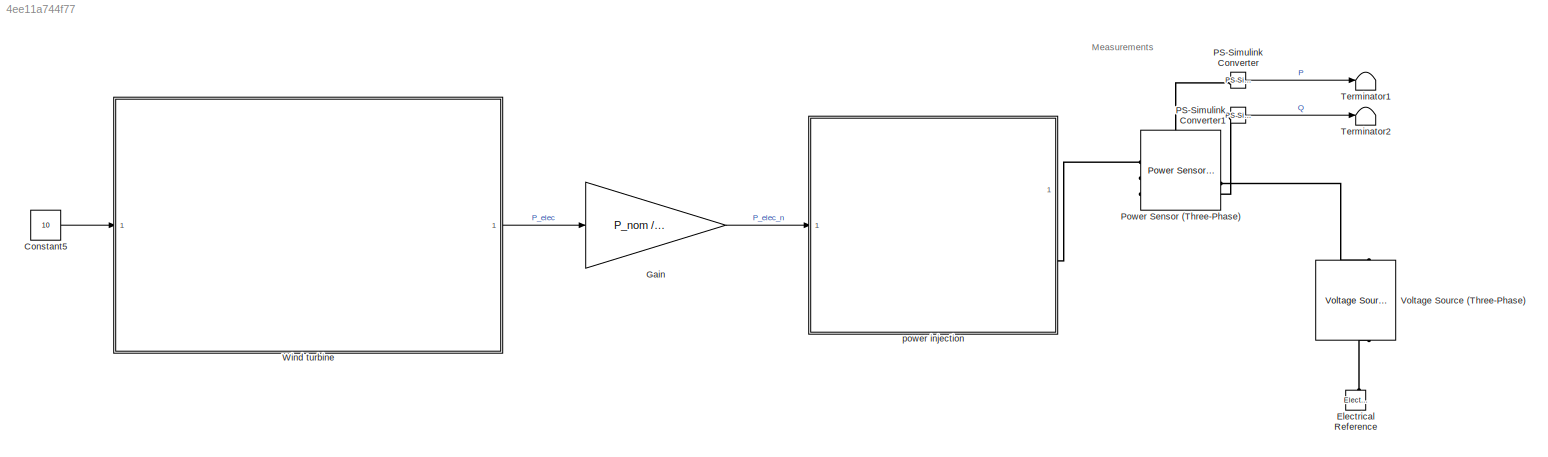
MODEL slx_4ee11a744f77
KIND model
CONFIG AbsTol = auto
CONFIG EnableMultiTasking = off
CONFIG FixedStep = auto
CONFIG MaxStep = 0.002
CONFIG MinStep = auto
CONFIG RelTol = 1e-3
CONFIG SampleTimeConstraint = Unconstrained
CONFIG SolverName = ode23t
CONFIG StartTime = 0
CONFIG StopTime = 20
BLOCK [Constant] Constant5
  Value = 10
BLOCK [Reference] Electrical Reference  REF=fl_lib/Electrical/Electrical Elements/Electrical Reference
  NameLocation = right
  SourceBlock = fl_lib/Electrical/Electrical Elements/Electrical Reference
  SourceType = Electrical Reference
BLOCK [Gain] Gain
  Gain = P_nom / P_max
BLOCK [Reference] PS-Simulink Converter  REF=nesl_utility/PS-Simulink
Converter
  SourceBlock = nesl_utility/PS-Simulink\nConverter
  SourceType = PS-Simulink\nConverter
BLOCK [Reference] PS-Simulink Converter1  REF=nesl_utility/PS-Simulink
Converter
  SourceBlock = nesl_utility/PS-Simulink\nConverter
  SourceType = PS-Simulink\nConverter
BLOCK [Reference] Power Sensor (Three-Phase)  REF=ee_lib/Sensors &
Transducers/Power Sensor
(Three-Phase)
  SourceBlock = ee_lib/Sensors &\nTransducers/Power Sensor\n(Three-Phase)
  SourceType = Power Sensor\n(Three-Phase)
BLOCK [Terminator] Terminator1
BLOCK [Terminator] Terminator2
BLOCK [Reference] Voltage Source (Three-Phase)  REF=ee_lib/Sources/Voltage
Source
(Three-Phase)
  NameLocation = right
  SourceBlock = ee_lib/Sources/Voltage\nSource\n(Three-Phase)
  SourceType = Voltage\nSource\n(Three-Phase)
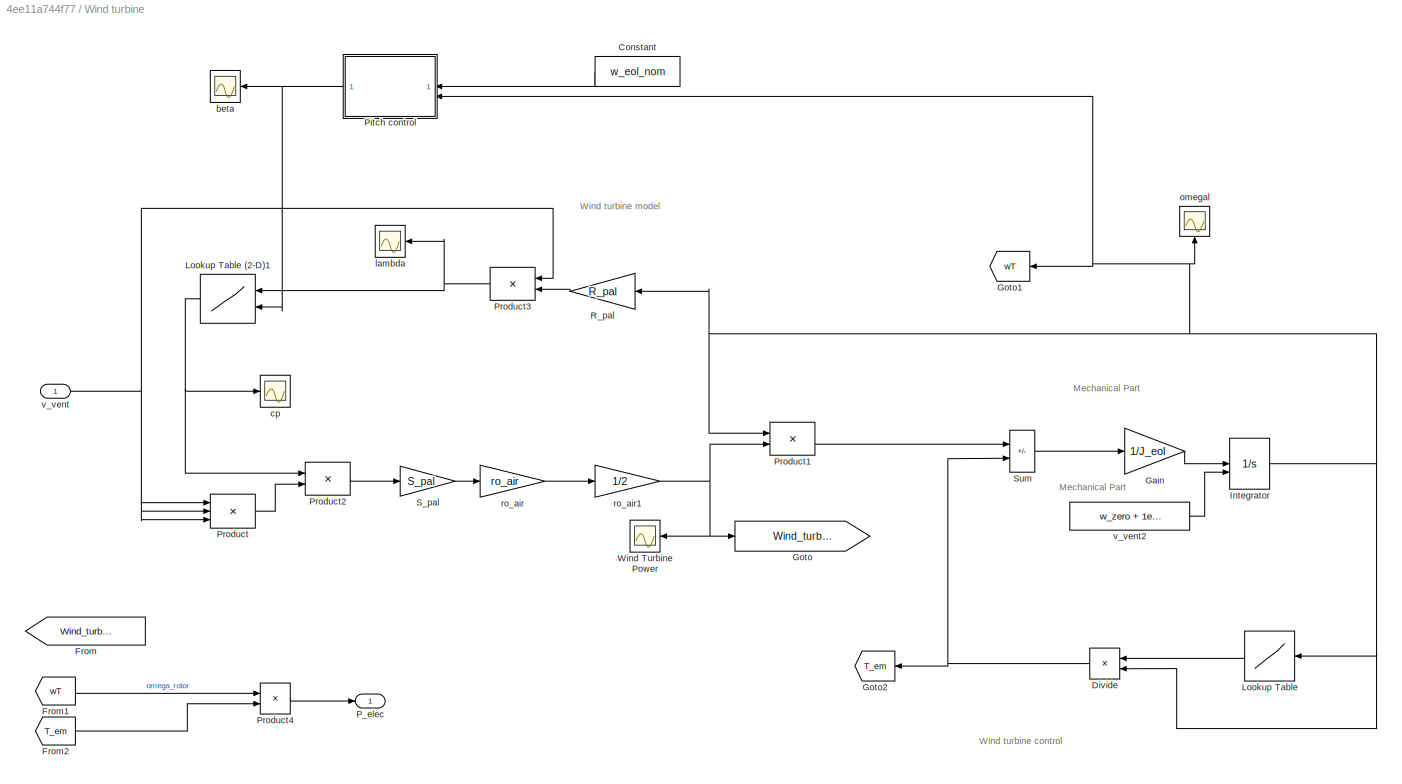
BLOCK [SubSystem] Wind turbine
BLOCK [Constant] Wind turbine/Constant
  Value = w_eol_nom
BLOCK [Product] Wind turbine/Divide
  InputSameDT = on
  Inputs = */
  OutDataTypeStr = Inherit: Same as first input
  RndMeth = Zero
BLOCK [From] Wind turbine/From
  CloseFcn = tagdialog Close
  GotoTag = Wind_turbine_Power
BLOCK [From] Wind turbine/From1
  CloseFcn = tagdialog Close
  GotoTag = wT
BLOCK [From] Wind turbine/From2
  CloseFcn = tagdialog Close
  GotoTag = T_em
BLOCK [Gain] Wind turbine/Gain
  Gain = 1/J_eol
  OutDataTypeStr = Inherit: Same as input
  ParamDataTypeStr = Inherit: Same as input
  SaturateOnIntegerOverflow = on
BLOCK [Goto] Wind turbine/Goto
  GotoTag = Wind_turbine_Power
BLOCK [Goto] Wind turbine/Goto1
  GotoTag = wT
BLOCK [Goto] Wind turbine/Goto2
  GotoTag = T_em
BLOCK [Integrator] Wind turbine/Integrator
  InitialConditionSource = external
BLOCK [Lookup] Wind turbine/Lookup Table
  InputValues = omega_tab
  Table = P_opt_tab2
BLOCK [Lookup2D] Wind turbine/Lookup Table (2-D)1
  ColumnIndex = beta_ref
  RowIndex = lambda_ref
  Table = Cp_ref
BLOCK [Outport] Wind turbine/P_elec
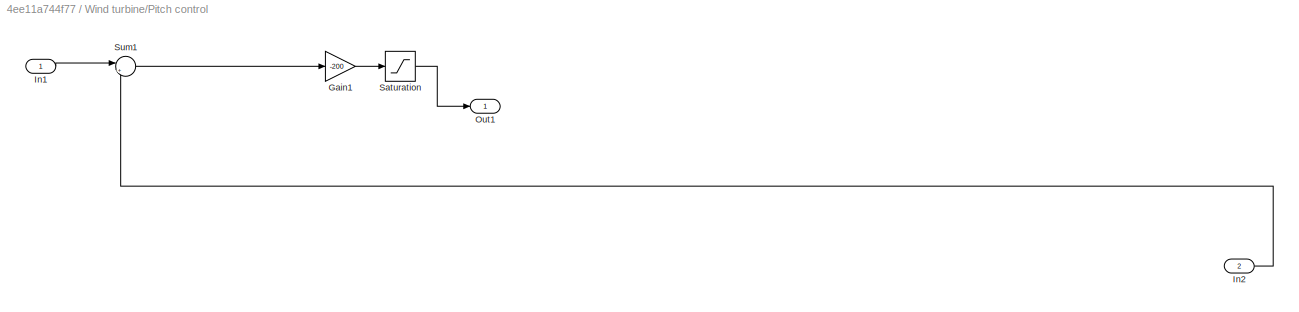
BLOCK [SubSystem] Wind turbine/Pitch control
BLOCK [Gain] Wind turbine/Pitch control/Gain1
  Gain = -200
BLOCK [Inport] Wind turbine/Pitch control/In1
BLOCK [Inport] Wind turbine/Pitch control/In2
  Port = 2
BLOCK [Outport] Wind turbine/Pitch control/Out1
BLOCK [Saturate] Wind turbine/Pitch control/Saturation
  LowerLimit = 0
  UpperLimit = inf
BLOCK [Sum] Wind turbine/Pitch control/Sum1
  Inputs = |+-
BLOCK [Product] Wind turbine/Product
  InputSameDT = on
  Inputs = 3
  OutDataTypeStr = Inherit: Same as first input
  RndMeth = Zero
  SaturateOnIntegerOverflow = on
BLOCK [Product] Wind turbine/Product1
  InputSameDT = on
  Inputs = /*
  OutDataTypeStr = Inherit: Same as first input
  RndMeth = Zero
  SaturateOnIntegerOverflow = on
BLOCK [Product] Wind turbine/Product2
  InputSameDT = on
  OutDataTypeStr = Inherit: Same as first input
  RndMeth = Zero
  SaturateOnIntegerOverflow = on
BLOCK [Product] Wind turbine/Product3
  InputSameDT = on
  Inputs = /*
  OutDataTypeStr = Inherit: Same as first input
  RndMeth = Zero
  SaturateOnIntegerOverflow = on
BLOCK [Product] Wind turbine/Product4
BLOCK [Gain] Wind turbine/R_pal
  Gain = R_pal
  OutDataTypeStr = Inherit: Same as input
  ParamDataTypeStr = Inherit: Same as input
  SaturateOnIntegerOverflow = on
BLOCK [Gain] Wind turbine/S_pal
  Gain = S_pal
  OutDataTypeStr = Inherit: Same as input
  ParamDataTypeStr = Inherit: Same as input
  SaturateOnIntegerOverflow = on
BLOCK [Sum] Wind turbine/Sum
  IconShape = rectangular
  InputSameDT = on
  Inputs = +-
  OutDataTypeStr = Inherit: Same as first input
  SaturateOnIntegerOverflow = on
BLOCK [Scope] Wind turbine/Wind Turbine Power
  Floating = off
  NameLocation = left
  NumInputPorts = 1
  ScopeSpecificationString = Simulink.scopes.TimeScopeBlockCfg('CurrentConfiguration', extmgr.ConfigurationSet(extmgr.Configuration('Core','General UI',true),extmgr.Configuration('Core','Source UI',true),extmgr.Configuration('Sources','WiredSimulink',true,'DataLoggingVariableName','ScopeData3'),extmgr.Configuration('Visuals','Time Domain',true,'SerializedDisplays',{struct('MinYLimReal','8318.13591','MaxYLimReal','263665.12868...<+1396ch>
BLOCK [Scope] Wind turbine/beta
  Floating = off
  NumInputPorts = 1
  ScopeSpecificationString = Simulink.scopes.TimeScopeBlockCfg('CurrentConfiguration', extmgr.ConfigurationSet(extmgr.Configuration('Core','General UI',true),extmgr.Configuration('Core','Source UI',true),extmgr.Configuration('Sources','WiredSimulink',true,'DataLoggingVariableName','ScopeData4'),extmgr.Configuration('Visuals','Time Domain',true,'SerializedDisplays',{struct('MinYLimReal','-1.40555','MaxYLimReal','12.64997','YLa...<+1409ch>
BLOCK [Scope] Wind turbine/cp
  Floating = off
  NumInputPorts = 1
  ScopeSpecificationString = Simulink.scopes.TimeScopeBlockCfg('CurrentConfiguration', extmgr.ConfigurationSet(extmgr.Configuration('Core','General UI',true),extmgr.Configuration('Core','Source UI',true),extmgr.Configuration('Sources','WiredSimulink',true,'DataLoggingVariableName','ScopeData1','DataLoggingSaveFormat','StructureWithTime','DataLoggingDecimation','1','DataLoggingDecimateData',true),extmgr.Configuration('Visuals'...<+1723ch>
BLOCK [Scope] Wind turbine/lambda
  Floating = off
  NumInputPorts = 1
  ScopeSpecificationString = Simulink.scopes.TimeScopeBlockCfg('CurrentConfiguration', extmgr.ConfigurationSet(extmgr.Configuration('Core','General UI',true),extmgr.Configuration('Core','Source UI',true),extmgr.Configuration('Sources','WiredSimulink',true,'DataLoggingVariableName','ScopeData2','DataLoggingSaveFormat','StructureWithTime','DataLoggingDecimation','1','DataLoggingDecimateData',true),extmgr.Configuration('Visuals'...<+1704ch>
BLOCK [Scope] Wind turbine/omegal  
  Floating = off
  NameLocation = left
  NumInputPorts = 1
  ScopeSpecificationString = Simulink.scopes.TimeScopeBlockCfg('CurrentConfiguration', extmgr.ConfigurationSet(extmgr.Configuration('Core','General UI',true),extmgr.Configuration('Core','Source UI',true),extmgr.Configuration('Sources','WiredSimulink',true,'DataLogging',true,'DataLoggingVariableName','omega_pal','DataLoggingSaveFormat','Array','DataLoggingMaxPoints','2000','DataLoggingDecimation','1','DataLoggingDecimateData',...<+1790ch>
BLOCK [Gain] Wind turbine/ro_air
  Gain = ro_air
  OutDataTypeStr = Inherit: Same as input
  ParamDataTypeStr = Inherit: Same as input
  SaturateOnIntegerOverflow = on
BLOCK [Gain] Wind turbine/ro_air1
  Gain = 1/2
  OutDataTypeStr = Inherit: Same as input
  ParamDataTypeStr = Inherit: Same as input
  SaturateOnIntegerOverflow = on
BLOCK [Inport] Wind turbine/v_vent
BLOCK [Constant] Wind turbine/v_vent2
  Value = w_zero + 1e-6
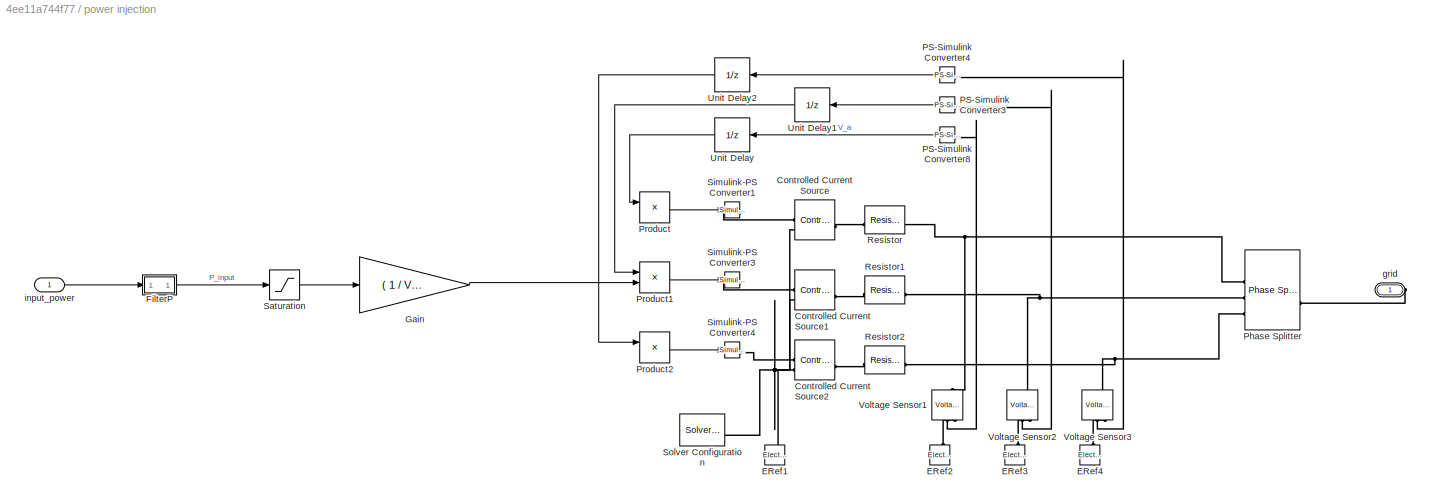
BLOCK [SubSystem] power injection
BLOCK [Reference] power injection/Controlled Current Source  REF=fl_lib/Electrical/Electrical Sources/Controlled Current
Source
  SourceBlock = fl_lib/Electrical/Electrical Sources/Controlled Current\nSource
  SourceType = Controlled Current\nSource
BLOCK [Reference] power injection/Controlled Current Source1  REF=fl_lib/Electrical/Electrical Sources/Controlled Current
Source
  SourceBlock = fl_lib/Electrical/Electrical Sources/Controlled Current\nSource
  SourceType = Controlled Current\nSource
BLOCK [Reference] power injection/Controlled Current Source2  REF=fl_lib/Electrical/Electrical Sources/Controlled Current
Source
  SourceBlock = fl_lib/Electrical/Electrical Sources/Controlled Current\nSource
  SourceType = Controlled Current\nSource
BLOCK [Reference] power injection/ERef1  REF=fl_lib/Electrical/Electrical Elements/Electrical Reference
  NameLocation = right
  SourceBlock = fl_lib/Electrical/Electrical Elements/Electrical Reference
  SourceType = Electrical Reference
BLOCK [Reference] power injection/ERef2  REF=fl_lib/Electrical/Electrical Elements/Electrical Reference
  NameLocation = right
  SourceBlock = fl_lib/Electrical/Electrical Elements/Electrical Reference
  SourceType = Electrical Reference
BLOCK [Reference] power injection/ERef3  REF=fl_lib/Electrical/Electrical Elements/Electrical Reference
  NameLocation = right
  SourceBlock = fl_lib/Electrical/Electrical Elements/Electrical Reference
  SourceType = Electrical Reference
BLOCK [Reference] power injection/ERef4  REF=fl_lib/Electrical/Electrical Elements/Electrical Reference
  NameLocation = right
  SourceBlock = fl_lib/Electrical/Electrical Elements/Electrical Reference
  SourceType = Electrical Reference
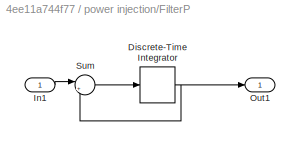
BLOCK [SubSystem] power injection/FilterP
BLOCK [DiscreteIntegrator] power injection/FilterP/Discrete-Time Integrator
  ICPrevOutput = DiscIntNeverNeededParam
  ICPrevScaledInput = DiscIntNeverNeededParam
  InitialConditionSetting = Auto
  SampleTime = -1
  gainval = 20
BLOCK [Inport] power injection/FilterP/In1
BLOCK [Outport] power injection/FilterP/Out1
BLOCK [Sum] power injection/FilterP/Sum
  Inputs = |+-
BLOCK [Gain] power injection/Gain
  Gain = ( 1 / V_ref ) ^ 2
BLOCK [Reference] power injection/PS-Simulink Converter3  REF=nesl_utility/PS-Simulink
Converter
  NameLocation = top
  SourceBlock = nesl_utility/PS-Simulink\nConverter
  SourceType = PS-Simulink\nConverter
BLOCK [Reference] power injection/PS-Simulink Converter4  REF=nesl_utility/PS-Simulink
Converter
  NameLocation = top
  SourceBlock = nesl_utility/PS-Simulink\nConverter
  SourceType = PS-Simulink\nConverter
BLOCK [Reference] power injection/PS-Simulink Converter8  REF=nesl_utility/PS-Simulink
Converter
  NameLocation = top
  SourceBlock = nesl_utility/PS-Simulink\nConverter
  SourceType = PS-Simulink\nConverter
BLOCK [Reference] power injection/Phase Splitter  REF=ee_lib/Connectors &
References/Phase Splitter
  SourceBlock = ee_lib/Connectors &\nReferences/Phase Splitter
  SourceType = Phase Splitter
BLOCK [Product] power injection/Product
BLOCK [Product] power injection/Product1
BLOCK [Product] power injection/Product2
BLOCK [Reference] power injection/Resistor  REF=fl_lib/Electrical/Electrical Elements/Resistor
  SourceBlock = fl_lib/Electrical/Electrical Elements/Resistor
  SourceType = Resistor
BLOCK [Reference] power injection/Resistor1  REF=fl_lib/Electrical/Electrical Elements/Resistor
  SourceBlock = fl_lib/Electrical/Electrical Elements/Resistor
  SourceType = Resistor
BLOCK [Reference] power injection/Resistor2  REF=fl_lib/Electrical/Electrical Elements/Resistor
  SourceBlock = fl_lib/Electrical/Electrical Elements/Resistor
  SourceType = Resistor
BLOCK [Saturate] power injection/Saturation
  LowerLimit = 0
  UpperLimit = P_max
BLOCK [Reference] power injection/Simulink-PS Converter1  REF=nesl_utility/Simulink-PS
Converter
  SourceBlock = nesl_utility/Simulink-PS\nConverter
  SourceType = Simulink-PS\nConverter
BLOCK [Reference] power injection/Simulink-PS Converter3  REF=nesl_utility/Simulink-PS
Converter
  SourceBlock = nesl_utility/Simulink-PS\nConverter
  SourceType = Simulink-PS\nConverter
BLOCK [Reference] power injection/Simulink-PS Converter4  REF=nesl_utility/Simulink-PS
Converter
  SourceBlock = nesl_utility/Simulink-PS\nConverter
  SourceType = Simulink-PS\nConverter
BLOCK [Reference] power injection/Solver Configuration  REF=nesl_utility/Solver
Configuration
  SourceBlock = nesl_utility/Solver\nConfiguration
  SourceType = Solver\nConfiguration
BLOCK [UnitDelay] power injection/Unit Delay
  HasFrameUpgradeWarning = on
  SampleTime = -1
BLOCK [UnitDelay] power injection/Unit Delay1
  HasFrameUpgradeWarning = on
  SampleTime = -1
BLOCK [UnitDelay] power injection/Unit Delay2
  HasFrameUpgradeWarning = on
  SampleTime = -1
BLOCK [Reference] power injection/Voltage Sensor1  REF=fl_lib/Electrical/Electrical Sensors/Voltage Sensor
  NameLocation = right
  SourceBlock = fl_lib/Electrical/Electrical Sensors/Voltage Sensor
  SourceType = Voltage Sensor
BLOCK [Reference] power injection/Voltage Sensor2  REF=fl_lib/Electrical/Electrical Sensors/Voltage Sensor
  NameLocation = right
  SourceBlock = fl_lib/Electrical/Electrical Sensors/Voltage Sensor
  SourceType = Voltage Sensor
BLOCK [Reference] power injection/Voltage Sensor3  REF=fl_lib/Electrical/Electrical Sensors/Voltage Sensor
  NameLocation = right
  SourceBlock = fl_lib/Electrical/Electrical Sensors/Voltage Sensor
  SourceType = Voltage Sensor
BLOCK [PMIOPort] power injection/grid
  Side = Right
BLOCK [Inport] power injection/input_power
ANNOTATION (root): Measurements
ANNOTATION Wind turbine: Mechanical Part
ANNOTATION Wind turbine: Wind turbine control
ANNOTATION Wind turbine: Wind turbine model
LINE Constant5:1 -> Wind turbine:1
LINE Gain:1 -> power injection:1
LINE PS-Simulink Converter1:1 -> Terminator2:1
LINE PS-Simulink Converter:1 -> Terminator1:1
LINE Wind turbine/Constant:1 -> Wind turbine/Pitch control:1
NET Wind turbine/Divide:1 -> Wind turbine/Goto2:1, Wind turbine/Sum:2
LINE Wind turbine/From1:1 -> Wind turbine/Product4:1
LINE Wind turbine/From2:1 -> Wind turbine/Product4:2
LINE Wind turbine/Gain:1 -> Wind turbine/Integrator:1
NET Wind turbine/Integrator:1 -> Wind turbine/Divide:2, Wind turbine/Goto1:1, Wind turbine/Lookup Table:1, Wind turbine/Pitch control:2, Wind turbine/Product1:1, Wind turbine/R_pal:1, Wind turbine/omegal  :1
NET Wind turbine/Lookup Table (2-D)1:1 -> Wind turbine/Product2:1, Wind turbine/cp:1
LINE Wind turbine/Lookup Table:1 -> Wind turbine/Divide:1
LINE Wind turbine/Pitch control/Gain1:1 -> Wind turbine/Pitch control/Saturation:1
LINE Wind turbine/Pitch control/In1:1 -> Wind turbine/Pitch control/Sum1:1
LINE Wind turbine/Pitch control/In2:1 -> Wind turbine/Pitch control/Sum1:2
LINE Wind turbine/Pitch control/Saturation:1 -> Wind turbine/Pitch control/Out1:1
LINE Wind turbine/Pitch control/Sum1:1 -> Wind turbine/Pitch control/Gain1:1
NET Wind turbine/Pitch control:1 -> Wind turbine/Lookup Table (2-D)1:2, Wind turbine/beta:1
LINE Wind turbine/Product1:1 -> Wind turbine/Sum:1
LINE Wind turbine/Product2:1 -> Wind turbine/S_pal:1
NET Wind turbine/Product3:1 -> Wind turbine/Lookup Table (2-D)1:1, Wind turbine/lambda:1
LINE Wind turbine/Product4:1 -> Wind turbine/P_elec:1
LINE Wind turbine/Product:1 -> Wind turbine/Product2:2
LINE Wind turbine/R_pal:1 -> Wind turbine/Product3:2
LINE Wind turbine/S_pal:1 -> Wind turbine/ro_air:1
LINE Wind turbine/Sum:1 -> Wind turbine/Gain:1
NET Wind turbine/ro_air1:1 -> Wind turbine/Goto:1, Wind turbine/Product1:2, Wind turbine/Wind Turbine Power:1
LINE Wind turbine/ro_air:1 -> Wind turbine/ro_air1:1
LINE Wind turbine/v_vent2:1 -> Wind turbine/Integrator:2
NET Wind turbine/v_vent:1 -> Wind turbine/Product3:1, Wind turbine/Product:1, Wind turbine/Product:2, Wind turbine/Product:3
LINE Wind turbine:1 -> Gain:1
NET power injection/FilterP/Discrete-Time Integrator:1 -> power injection/FilterP/Out1:1, power injection/FilterP/Sum:2
LINE power injection/FilterP/In1:1 -> power injection/FilterP/Sum:1
LINE power injection/FilterP/Sum:1 -> power injection/FilterP/Discrete-Time Integrator:1
LINE power injection/FilterP:1 -> power injection/Saturation:1
LINE power injection/Gain:1 -> power injection/Product1:2
LINE power injection/PS-Simulink Converter3:1 -> power injection/Unit Delay1:1
LINE power injection/PS-Simulink Converter4:1 -> power injection/Unit Delay2:1
LINE power injection/PS-Simulink Converter8:1 -> power injection/Unit Delay:1
LINE power injection/Product1:1 -> power injection/Simulink-PS Converter3:1
LINE power injection/Product2:1 -> power injection/Simulink-PS Converter4:1
LINE power injection/Product:1 -> power injection/Simulink-PS Converter1:1
LINE power injection/Saturation:1 -> power injection/Gain:1
LINE power injection/Unit Delay1:1 -> power injection/Product1:1
LINE power injection/Unit Delay2:1 -> power injection/Product2:1
LINE power injection/Unit Delay:1 -> power injection/Product:1
LINE power injection/input_power:1 -> power injection/FilterP:1
PLINE Electrical Reference:LConn1 -- Voltage Source (Three-Phase):LConn1
PLINE PS-Simulink Converter1:LConn1 -- Power Sensor (Three-Phase):LConn3
PLINE PS-Simulink Converter:LConn1 -- Power Sensor (Three-Phase):LConn2
PLINE Power Sensor (Three-Phase):LConn1 -- power injection:RConn1
PLINE Power Sensor (Three-Phase):RConn1 -- Voltage Source (Three-Phase):RConn1
PLINE power injection/Controlled Current Source1:LConn1 -- power injection/Resistor1:LConn1
PLINE power injection/Controlled Current Source1:RConn1 -- power injection/Simulink-PS Converter3:RConn1
PNET net1: power injection/Controlled Current Source1:RConn2 -- power injection/Controlled Current Source2:RConn2 -- power injection/Controlled Current Source:RConn2 -- power injection/ERef1:LConn1 -- power injection/Solver Configuration:RConn1
PLINE power injection/Controlled Current Source2:LConn1 -- power injection/Resistor2:LConn1
PLINE power injection/Controlled Current Source2:RConn1 -- power injection/Simulink-PS Converter4:RConn1
PLINE power injection/Controlled Current Source:LConn1 -- power injection/Resistor:LConn1
PLINE power injection/Controlled Current Source:RConn1 -- power injection/Simulink-PS Converter1:RConn1
PLINE power injection/ERef2:LConn1 -- power injection/Voltage Sensor1:RConn2
PLINE power injection/ERef3:LConn1 -- power injection/Voltage Sensor2:RConn2
PLINE power injection/ERef4:LConn1 -- power injection/Voltage Sensor3:RConn2
PLINE power injection/PS-Simulink Converter3:LConn1 -- power injection/Voltage Sensor2:RConn1
PLINE power injection/PS-Simulink Converter4:LConn1 -- power injection/Voltage Sensor3:RConn1
PLINE power injection/PS-Simulink Converter8:LConn1 -- power injection/Voltage Sensor1:RConn1
PLINE power injection/Phase Splitter:LConn1 -- power injection/grid:RConn1
PNET net2: power injection/Phase Splitter:RConn1 -- power injection/Resistor:RConn1 -- power injection/Voltage Sensor1:LConn1
PNET net3: power injection/Phase Splitter:RConn2 -- power injection/Resistor1:RConn1 -- power injection/Voltage Sensor2:LConn1
PNET net4: power injection/Phase Splitter:RConn3 -- power injection/Resistor2:RConn1 -- power injection/Voltage Sensor3:LConn1
note: NET lines group one-source signal fan-out (src -> all destinations, sorted); 1:1 wires keep LINE; PNET lines group multi-terminal physical nets as a canonical sorted terminal list (undirected conserving connections); 2-terminal nets keep the pairwise PLINE form
